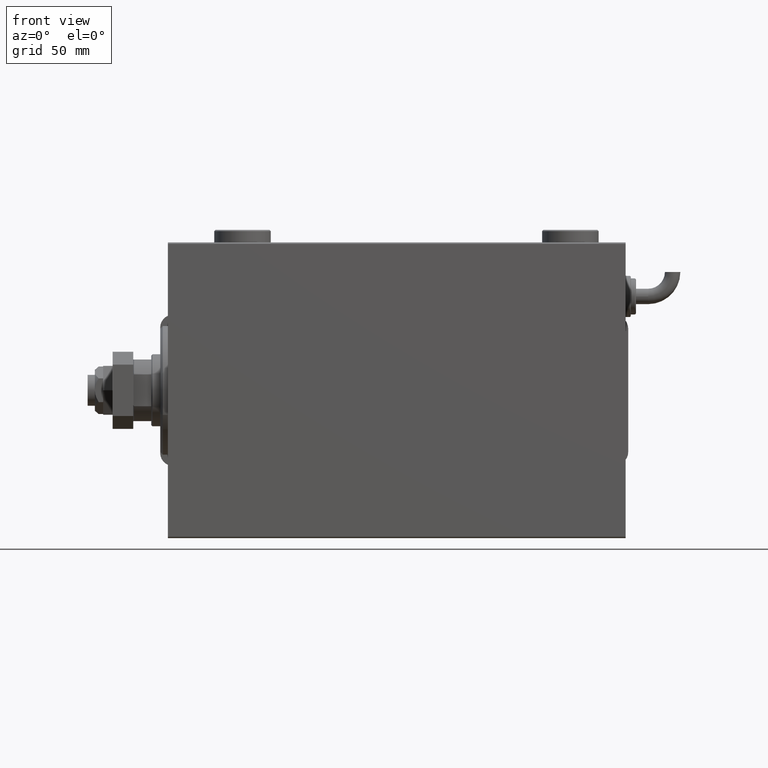
[diagram: clean part render]
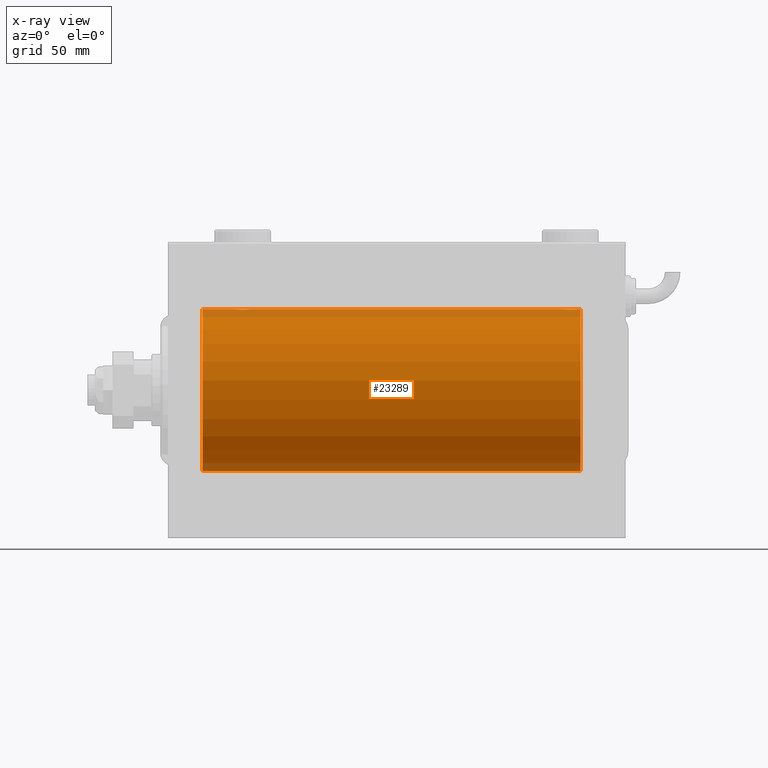
[diagram: x-ray — body ghosted, one internal face saturated and labeled with its STEP entity id]
A machine part, front view, then the same camera in x-ray: the body is ghosted and one INTERNAL B-rep face — a face not visible from any outside direction — is saturated and labeled: STEP entity #23289.
In plain terms, the highlighted cylindrical surface (partial cylindrical patch) has radius 31.5 mm, axis along (-1, -0, -0).
Its self-contained STEP definition (entity closure, byte-faithful):
#307 = CARTESIAN_POINT ( 'NONE',  ( 155.5305554434147837, -2.845838211243326032, 31.37127560316188024 ) ) ;
#395 = CARTESIAN_POINT ( 'NONE',  ( 31.38246872266631371, -1.833765390051040223, 31.44700610425690712 ) ) ;
#702 = LINE ( 'NONE', #59827, #1546 ) ;
#799 = CARTESIAN_POINT ( 'NONE',  ( 158.3304369148700346, -2.384935707362425550, -31.40977595730572247 ) ) ;
#1546 = VECTOR ( 'NONE', #56652, 1000.000000000000000 ) ;
#1906 = CARTESIAN_POINT ( 'NONE',  ( 32.00000000000000000, -3.906065418435112189E-16, 31.50000000000000000 ) ) ;
#2026 = CARTESIAN_POINT ( 'NONE',  ( 159.5000000000000000, 3.857637396132714903E-15, -31.50000000000000000 ) ) ;
#2657 = CARTESIAN_POINT ( 'NONE',  ( 30.98460359924664687, -2.258226318633781649, -31.41925597582825702 ) ) ;
#4121 = CARTESIAN_POINT ( 'NONE',  ( 26.00000000000001066, -0.1958045626907463088, 31.50000000000000711 ) ) ;
#4251 = EDGE_CURVE ( 'NONE', #57856, #50185, #39452, .T. ) ;
#4341 = CARTESIAN_POINT ( 'NONE',  ( 159.4202066295003988, -0.7905881588836107809, 31.49214662150069088 ) ) ;
#4427 = CARTESIAN_POINT ( 'NONE',  ( 29.96515729810641204, -2.847307171789037028, 31.37114183851420890 ) ) ;
#4491 = CARTESIAN_POINT ( 'NONE',  ( 27.67134585312494011, -2.696917666262907520, -31.38442820068732786 ) ) ;
#4651 = CARTESIAN_POINT ( 'NONE',  ( 156.6958229443944219, -3.000152387858483927, 31.35680286115499626 ) ) ;
#5036 = CARTESIAN_POINT ( 'NONE',  ( 27.66760041900836953, -2.695056442718533507, 31.38458855656185875 ) ) ;
#5250 = CARTESIAN_POINT ( 'NONE',  ( 154.5153964007533887, -2.258226318633788754, 31.41925597582826413 ) ) ;
#5450 = CARTESIAN_POINT ( 'NONE',  ( 158.8850144227692454, -1.830470878313878336, -31.44719957596828763 ) ) ;
#5546 = LINE ( 'NONE', #14500, #58778 ) ;
#6973 = CARTESIAN_POINT ( 'NONE',  ( 157.8323995809916767, -2.695056442718533951, -31.38458855656186230 ) ) ;
#7182 = VERTEX_POINT ( 'NONE', #39407 ) ;
#7579 = CARTESIAN_POINT ( 'NONE',  ( 154.5185653712696023, -2.261012035264789777, -31.41905495618427224 ) ) ;
#7594 = CARTESIAN_POINT ( 'NONE',  ( 31.98101509391517538, -0.3904857149111993775, -31.49817436802766224 ) ) ;
#8091 = EDGE_CURVE ( 'NONE', #46376, #32395, #14140, .T. ) ;
#9432 = CARTESIAN_POINT ( 'NONE',  ( 26.00000000000000355, -6.595038141055444136E-15, -31.50000000000000000 ) ) ;
#9587 = CARTESIAN_POINT ( 'NONE',  ( 157.2746909443437175, -2.904836261170101519, 31.36579955910872286 ) ) ;
#9675 = CARTESIAN_POINT ( 'NONE',  ( 29.19582294439440417, -3.000152387858486147, 31.35680286115499626 ) ) ;
#9884 = CARTESIAN_POINT ( 'NONE',  ( 159.1019214043915326, -1.506272792558311702, 31.46439306106696421 ) ) ;
#10078 = CARTESIAN_POINT ( 'NONE',  ( 159.3466046374250027, -0.9669616078781947399, -31.48567319468627446 ) ) ;
#11009 = DIRECTION ( 'NONE',  ( 0.000000000000000000, 0.000000000000000000, 1.000000000000000000 ) ) ;
#11525 = DIRECTION ( 'NONE',  ( -1.000000000000000000, -0.000000000000000000, -0.000000000000000000 ) ) ;
#11602 = CARTESIAN_POINT ( 'NONE',  ( 156.8953411100009703, -2.980257240990060730, -31.35872356503797320 ) ) ;
#11919 = CARTESIAN_POINT ( 'NONE',  ( 31.90419450738055218, -0.7775502215293819130, -31.49099686045559565 ) ) ;
#11923 = ORIENTED_EDGE ( 'NONE', *, *, #21234, .F. ) ;
#12091 = EDGE_CURVE ( 'NONE', #50185, #7182, #36603, .T. ) ;
#12511 = CARTESIAN_POINT ( 'NONE',  ( 153.5000000000000000, -2.045720367747829303E-14, -31.50000000000000000 ) ) ;
#12820 = CARTESIAN_POINT ( 'NONE',  ( 153.8980785956084105, -1.506272792558325468, -31.46439306106695710 ) ) ;
#13445 = CARTESIAN_POINT ( 'NONE',  ( 27.17295774629732819, -2.387531469909775605, -31.40957782495775419 ) ) ;
#13581 = AXIS2_PLACEMENT_3D ( 'NONE', #34459, #53337, #11009 ) ;
#13616 = CARTESIAN_POINT ( 'NONE',  ( 160.5000000000000000, 3.857637417314162689E-15, -31.50000000000000000 ) ) ;
#13900 = CARTESIAN_POINT ( 'NONE',  ( 158.8824687226662888, -1.833765390051030009, 31.44700610425690712 ) ) ;
#13993 = CARTESIAN_POINT ( 'NONE',  ( 30.82704225370267892, -2.387531469909770276, 31.40957782495776129 ) ) ;
#14140 = CIRCLE ( 'NONE', #33821, 31.50000000000000000 ) ;
#14205 = CARTESIAN_POINT ( 'NONE',  ( 153.8028576116330157, -1.328004386210311472, 31.47251238182141719 ) ) ;
#14313 = FACE_OUTER_BOUND ( 'NONE', #40734, .T. ) ;
#14351 = CARTESIAN_POINT ( 'NONE',  ( 26.61753127733371116, -1.833765390051047106, -31.44700610425690002 ) ) ;
#14383 = EDGE_CURVE ( 'NONE', #56769, #46781, #37180, .T. ) ;
#14500 = CARTESIAN_POINT ( 'NONE',  ( 160.5000000000000000, 3.857637417314162689E-15, -31.50000000000000000 ) ) ;
#14765 = ORIENTED_EDGE ( 'NONE', *, *, #37258, .F. ) ;
#15101 = CARTESIAN_POINT ( 'NONE',  ( 158.3270422537027002, -2.387531469909772941, 31.40957782495776840 ) ) ;
#15206 = DIRECTION ( 'NONE',  ( 0.000000000000000000, 0.000000000000000000, 1.000000000000000000 ) ) ;
#15265 = CARTESIAN_POINT ( 'NONE',  ( 160.5000000000000000, 3.857637417314162689E-15, -31.50000000000000000 ) ) ;
#15301 = CARTESIAN_POINT ( 'NONE',  ( 158.4846035992465829, -2.258226318633799412, -31.41925597582826413 ) ) ;
#16538 = CARTESIAN_POINT ( 'NONE',  ( 32.00000000000000000, 3.857637396137448068E-15, -31.50000000000000000 ) ) ;
#16822 = CARTESIAN_POINT ( 'NONE',  ( 153.5797933704995728, -0.7905881588836281004, -31.49214662150069088 ) ) ;
#16835 = CARTESIAN_POINT ( 'NONE',  ( 29.96944455658523054, -2.845838211243329585, -31.37127560316186603 ) ) ;
#17139 = CARTESIAN_POINT ( 'NONE',  ( 31.60417781274729165, -1.502389880412996259, -31.46458023642406587 ) ) ;
#17446 = CARTESIAN_POINT ( 'NONE',  ( 28.22530905565627179, -2.904836261170103739, -31.36579955910872286 ) ) ;
#18003 = CARTESIAN_POINT ( 'NONE',  ( 153.5000000000000000, -2.118130973563677748E-23, 31.50000000000000000 ) ) ;
#18150 = CARTESIAN_POINT ( 'NONE',  ( 26.00000000000000355, -6.595038141055444136E-15, -31.50000000000000000 ) ) ;
#18531 = CARTESIAN_POINT ( 'NONE',  ( 156.8911454733994333, -2.980809450819698281, 31.35867074198615967 ) ) ;
#18617 = CARTESIAN_POINT ( 'NONE',  ( 26.01898490608483527, -0.3904857149112033743, 31.49817436802766935 ) ) ;
#18673 = CARTESIAN_POINT ( 'NONE',  ( 27.49901843703856130, -2.604888532024793424, -31.39229907792058683 ) ) ;
#18798 = EDGE_CURVE ( 'NONE', #7182, #59370, #20431, .T. ) ;
#18873 = CARTESIAN_POINT ( 'NONE',  ( 13.50000000000001243, 0.000000000000000000, 31.50000000000000000 ) ) ;
#18916 = CARTESIAN_POINT ( 'NONE',  ( 26.39582218725271900, -1.502389880413001144, 31.46458023642405166 ) ) ;
#19130 = CARTESIAN_POINT ( 'NONE',  ( 156.1046588899990581, -2.980257240990053624, 31.35872356503797320 ) ) ;
#20312 = B_SPLINE_CURVE_WITH_KNOTS ( 'NONE', 3,
 ( #2026, #29791, #48665, #52407, #10078, #28890, #47756, #5450, #24251, #15301, #799, #26675, #6973, #40911, #55149, #11602, #40604, #59785, #31021, #39696, #26380, #49905, #54534, #45855, #7579, #49597, #30408, #12820, #59178, #16822, #35656, #12511 ),
 .UNSPECIFIED., .F., .F.,
 ( 4, 2, 2, 2, 2, 2, 2, 2, 2, 2, 2, 2, 2, 2, 2, 4 ),
 ( 0.009384682587134632673, 0.009971088165454031899, 0.01055749374377343112, 0.01114389932209283035, 0.01173030490041223131, 0.01231671047873163054, 0.01290311605705102976, 0.01348952163537043072, 0.01407592721368982822, 0.01466233279200922918, 0.01524873837032862840, 0.01583514394864802763, 0.01642154952696742512, 0.01700795510528682608, 0.01759436068360622357, 0.01876717184024502549 ),
 .UNSPECIFIED. ) ;
#20431 = CIRCLE ( 'NONE', #13581, 31.50000000000000000 ) ;
#20791 = CARTESIAN_POINT ( 'NONE',  ( 153.5000000000000000, -2.045720367747829303E-14, -31.50000000000000000 ) ) ;
#21234 = EDGE_CURVE ( 'NONE', #56769, #33739, #30642, .T. ) ;
#21389 = AXIS2_PLACEMENT_3D ( 'NONE', #57560, #24161, #15206 ) ;
#22058 = CARTESIAN_POINT ( 'NONE',  ( 29.20046458974095671, -2.999845816735294157, -31.35683219171744085 ) ) ;
#22681 = CARTESIAN_POINT ( 'NONE',  ( 28.03484270189360217, -2.847307171789034808, -31.37114183851420179 ) ) ;
#22928 = CARTESIAN_POINT ( 'NONE',  ( 28.60465888999904749, -2.980257240990054513, 31.35872356503797320 ) ) ;
#22986 = CARTESIAN_POINT ( 'NONE',  ( 26.39807859560848158, -1.506272792558332130, -31.46439306106697131 ) ) ;
#23235 = CARTESIAN_POINT ( 'NONE',  ( 30.32865414687508832, -2.696917666262907520, 31.38442820068731365 ) ) ;
#23289 = ADVANCED_FACE ( 'NONE', ( #14313 ), #42727, .F. ) ;
#23752 = CARTESIAN_POINT ( 'NONE',  ( 153.5189849060848246, -0.3904857149112037629, 31.49817436802766935 ) ) ;
#23840 = CARTESIAN_POINT ( 'NONE',  ( 29.77469094434372821, -2.904836261170106404, 31.36579955910873707 ) ) ;
#23974 = VECTOR ( 'NONE', #60416, 1000.000000000000000 ) ;
#24161 = DIRECTION ( 'NONE',  ( -1.000000000000000000, -0.000000000000000000, -0.000000000000000000 ) ) ;
#24251 = CARTESIAN_POINT ( 'NONE',  ( 158.7609546245613217, -1.981494824113344322, -31.43792153503157394 ) ) ;
#24345 = DIRECTION ( 'NONE',  ( -1.000000000000000000, -0.000000000000000000, -0.000000000000000000 ) ) ;
#24353 = CARTESIAN_POINT ( 'NONE',  ( 159.5000000000000000, 4.699731104275013306E-15, 31.50000000000000000 ) ) ;
#25008 = CARTESIAN_POINT ( 'NONE',  ( 160.5000000000000000, 0.000000000000000000, 0.000000000000000000 ) ) ;
#25651 = ORIENTED_EDGE ( 'NONE', *, *, #29058, .T. ) ;
#26094 = CARTESIAN_POINT ( 'NONE',  ( 31.38501442276926667, -1.830470878313872563, -31.44719957596828763 ) ) ;
#26380 = CARTESIAN_POINT ( 'NONE',  ( 155.5348427018936377, -2.847307171789046354, -31.37114183851420179 ) ) ;
#26675 = CARTESIAN_POINT ( 'NONE',  ( 158.0045628500699877, -2.602826974226389645, -31.39247100434486271 ) ) ;
#27742 = VERTEX_POINT ( 'NONE', #30346 ) ;
#27786 = CARTESIAN_POINT ( 'NONE',  ( 157.4651572981064476, -2.847307171789025926, 31.37114183851420179 ) ) ;
#27933 = CARTESIAN_POINT ( 'NONE',  ( 27.01856537126958813, -2.261012035264781783, -31.41905495618428645 ) ) ;
#28177 = CARTESIAN_POINT ( 'NONE',  ( 26.15339536257501507, -0.9669616078781987367, 31.48567319468626735 ) ) ;
#28393 = CARTESIAN_POINT ( 'NONE',  ( 153.5000000000000000, -2.118130973563677748E-23, 31.50000000000000000 ) ) ;
#28692 = CARTESIAN_POINT ( 'NONE',  ( 159.1952964235900936, -1.331741824817656683, 31.47235367475393630 ) ) ;
#28890 = CARTESIAN_POINT ( 'NONE',  ( 159.1971423883670127, -1.328004386210302368, -31.47251238182141719 ) ) ;
#28988 = CARTESIAN_POINT ( 'NONE',  ( 153.5958054926194620, -0.7775502215293850217, 31.49099686045560276 ) ) ;
#29058 = EDGE_CURVE ( 'NONE', #45526, #57856, #42023, .T. ) ;
#29791 = CARTESIAN_POINT ( 'NONE',  ( 159.5000000000000284, -0.1958045626907440329, -31.50000000000000000 ) ) ;
#29978 = CARTESIAN_POINT ( 'NONE',  ( 32.00000000000001421, -0.3965830985361748495, 31.50000000000001421 ) ) ;
#30023 = CARTESIAN_POINT ( 'NONE',  ( 160.5000000000000000, 0.000000000000000000, 31.50000000000000000 ) ) ;
#30346 = CARTESIAN_POINT ( 'NONE',  ( 26.00000000000000355, -2.117263226567934635E-23, 31.50000000000000000 ) ) ;
#30408 = CARTESIAN_POINT ( 'NONE',  ( 154.1175312773337112, -1.833765390051043553, -31.44700610425689291 ) ) ;
#30539 = ORIENTED_EDGE ( 'NONE', *, *, #57510, .F. ) ;
#30642 = LINE ( 'NONE', #30023, #47969 ) ;
#31021 = CARTESIAN_POINT ( 'NONE',  ( 156.1088545266006236, -2.980809450819712936, -31.35867074198615967 ) ) ;
#31039 = ORIENTED_EDGE ( 'NONE', *, *, #53077, .T. ) ;
#31656 = VECTOR ( 'NONE', #51581, 1000.000000000000000 ) ;
#32395 = VERTEX_POINT ( 'NONE', #37540 ) ;
#32513 = CARTESIAN_POINT ( 'NONE',  ( 29.39114547339941552, -2.980809450819701834, 31.35867074198615967 ) ) ;
#32735 = CARTESIAN_POINT ( 'NONE',  ( 155.7211808735768273, -2.903733559410683895, 31.36590199989304395 ) ) ;
#33031 = CARTESIAN_POINT ( 'NONE',  ( 159.4999999999999432, -0.3965830985361761263, 31.50000000000000000 ) ) ;
#33123 = CARTESIAN_POINT ( 'NONE',  ( 27.16956308512997964, -2.384935707362437096, 31.40977595730572958 ) ) ;
#33341 = CARTESIAN_POINT ( 'NONE',  ( 154.9954371499300407, -2.602826974226394086, 31.39247100434485560 ) ) ;
#33424 = CARTESIAN_POINT ( 'NONE',  ( 26.73904537543869608, -1.981494824113328779, 31.43792153503155973 ) ) ;
#33739 = VERTEX_POINT ( 'NONE', #33785 ) ;
#33785 = CARTESIAN_POINT ( 'NONE',  ( 32.00000000000000000, -3.906065418435112189E-16, 31.50000000000000000 ) ) ;
#33821 = AXIS2_PLACEMENT_3D ( 'NONE', #25008, #54911, #43867 ) ;
#34459 = CARTESIAN_POINT ( 'NONE',  ( 13.50000000000001243, 0.000000000000000000, 0.000000000000000000 ) ) ;
#35656 = CARTESIAN_POINT ( 'NONE',  ( 153.5000000000000284, -0.3965830985361946115, -31.50000000000000711 ) ) ;
#35673 = CARTESIAN_POINT ( 'NONE',  ( 32.00000000000001421, -0.1958045626907418957, -31.50000000000000711 ) ) ;
#35943 = ORIENTED_EDGE ( 'NONE', *, *, #18798, .T. ) ;
#35981 = CARTESIAN_POINT ( 'NONE',  ( 29.77881912642320827, -2.903733559410679455, -31.36590199989303684 ) ) ;
#36603 = LINE ( 'NONE', #56397, #23974 ) ;
#37180 = B_SPLINE_CURVE_WITH_KNOTS ( 'NONE', 3,
 ( #28393, #52811, #23752, #28988, #42317, #14205, #51605, #56554, #56244, #5250, #42613, #33341, #46964, #307, #32735, #19130, #52214, #4651, #18531, #9587, #27786, #57156, #47568, #15101, #47862, #37372, #13900, #9884, #28692, #4341, #33031, #24353 ),
 .UNSPECIFIED., .F., .F.,
 ( 4, 2, 2, 2, 2, 2, 2, 2, 2, 2, 2, 2, 2, 2, 2, 4 ),
 ( 0.009384682587134643081, 0.009971088165454042307, 0.01055749374377344327, 0.01114389932209284423, 0.01173030490041224345, 0.01231671047873164268, 0.01290311605705104364, 0.01348952163537044460, 0.01407592721368984383, 0.01466233279200924305, 0.01524873837032864402, 0.01583514394864804498, 0.01642154952696744594, 0.01700795510528684690, 0.01759436068360624439, 0.01876717184024504284 ),
 .UNSPECIFIED. ) ;
#37258 = EDGE_CURVE ( 'NONE', #32395, #46781, #37349, .T. ) ;
#37277 = VECTOR ( 'NONE', #51918, 1000.000000000000000 ) ;
#37349 = LINE ( 'NONE', #46325, #31656 ) ;
#37372 = CARTESIAN_POINT ( 'NONE',  ( 158.7582450190326426, -1.984587626072069844, 31.43772577203671759 ) ) ;
#37540 = CARTESIAN_POINT ( 'NONE',  ( 160.5000000000000000, 0.000000000000000000, 31.50000000000000000 ) ) ;
#37696 = CARTESIAN_POINT ( 'NONE',  ( 159.5000000000000000, 3.857637396132714903E-15, -31.50000000000000000 ) ) ;
#37760 = CARTESIAN_POINT ( 'NONE',  ( 26.00000000000000355, -2.117263226567934635E-23, 31.50000000000000000 ) ) ;
#39407 = CARTESIAN_POINT ( 'NONE',  ( 13.50000000000001243, 3.857637417314162689E-15, -31.50000000000000000 ) ) ;
#39452 = B_SPLINE_CURVE_WITH_KNOTS ( 'NONE', 3,
 ( #16538, #35673, #7594, #11919, #40623, #49609, #17139, #26094, #44966, #2657, #40320, #45567, #59191, #16835, #35981, #54857, #22058, #40926, #59797, #17446, #22681, #4491, #18673, #13445, #27933, #47110, #14351, #22986, #41848, #42460, #60412, #9432 ),
 .UNSPECIFIED., .F., .F.,
 ( 4, 2, 2, 2, 2, 2, 2, 2, 2, 2, 2, 2, 2, 2, 2, 4 ),
 ( 0.009384682587134662163, 0.009971088165454068328, 0.01055749374377347449, 0.01114389932209288066, 0.01173030490041228682, 0.01231671047873168605, 0.01290311605705108527, 0.01348952163537048277, 0.01407592721368988199, 0.01466233279200928122, 0.01524873837032868044, 0.01583514394864807967, 0.01642154952696747716, 0.01700795510528687812, 0.01759436068360627908, 0.01876717184024507407 ),
 .UNSPECIFIED. ) ;
#39696 = CARTESIAN_POINT ( 'NONE',  ( 155.7253090556563109, -2.904836261170120171, -31.36579955910872286 ) ) ;
#40207 = VERTEX_POINT ( 'NONE', #37696 ) ;
#40320 = CARTESIAN_POINT ( 'NONE',  ( 30.83043691487002746, -2.384935707362433988, -31.40977595730572958 ) ) ;
#40604 = CARTESIAN_POINT ( 'NONE',  ( 156.7004645897409887, -2.999845816735304815, -31.35683219171744796 ) ) ;
#40623 = CARTESIAN_POINT ( 'NONE',  ( 31.84660463742499559, -0.9669616078781945179, -31.48567319468626735 ) ) ;
#40734 = EDGE_LOOP ( 'NONE', ( #54046, #31039, #45771, #25651, #61024, #43679, #35943, #30539, #50929, #11923, #41325, #14765 ) ) ;
#40911 = CARTESIAN_POINT ( 'NONE',  ( 157.4694445565852448, -2.845838211243336691, -31.37127560316186603 ) ) ;
#40926 = CARTESIAN_POINT ( 'NONE',  ( 28.80417705560560648, -3.000152387858484371, -31.35680286115500337 ) ) ;
#41325 = ORIENTED_EDGE ( 'NONE', *, *, #14383, .T. ) ;
#41790 = CARTESIAN_POINT ( 'NONE',  ( 30.98143462873041898, -2.261012035264782227, 31.41905495618429356 ) ) ;
#41848 = CARTESIAN_POINT ( 'NONE',  ( 26.30470357640989576, -1.331741824817665343, -31.47235367475392920 ) ) ;
#42023 = LINE ( 'NONE', #13616, #37277 ) ;
#42099 = CARTESIAN_POINT ( 'NONE',  ( 28.22118087357680238, -2.903733559410683895, 31.36590199989303684 ) ) ;
#42317 = CARTESIAN_POINT ( 'NONE',  ( 153.6533953625750257, -0.9669616078782046209, 31.48567319468627801 ) ) ;
#42460 = CARTESIAN_POINT ( 'NONE',  ( 26.07979337049960478, -0.7905881588836203289, -31.49214662150069088 ) ) ;
#42613 = CARTESIAN_POINT ( 'NONE',  ( 154.6695630851299654, -2.384935707362434876, 31.40977595730572958 ) ) ;
#42702 = CARTESIAN_POINT ( 'NONE',  ( 30.50098156296146712, -2.604888532024788983, 31.39229907792058683 ) ) ;
#42727 = CYLINDRICAL_SURFACE ( 'NONE', #21389, 31.50000000000000000 ) ;
#43679 = ORIENTED_EDGE ( 'NONE', *, *, #12091, .T. ) ;
#43867 = DIRECTION ( 'NONE',  ( 0.000000000000000000, 0.000000000000000000, 1.000000000000000000 ) ) ;
#44966 = CARTESIAN_POINT ( 'NONE',  ( 31.26095462456130747, -1.981494824113326114, -31.43792153503156683 ) ) ;
#45526 = VERTEX_POINT ( 'NONE', #20791 ) ;
#45567 = CARTESIAN_POINT ( 'NONE',  ( 30.50456285006998769, -2.602826974226392309, -31.39247100434485560 ) ) ;
#45771 = ORIENTED_EDGE ( 'NONE', *, *, #48371, .T. ) ;
#45855 = CARTESIAN_POINT ( 'NONE',  ( 154.6729577462973566, -2.387531469909784931, -31.40957782495775419 ) ) ;
#46325 = CARTESIAN_POINT ( 'NONE',  ( 160.5000000000000000, 0.000000000000000000, 31.50000000000000000 ) ) ;
#46376 = VERTEX_POINT ( 'NONE', #15265 ) ;
#46743 = CARTESIAN_POINT ( 'NONE',  ( 27.01539640075335669, -2.258226318633785201, 31.41925597582825702 ) ) ;
#46781 = VERTEX_POINT ( 'NONE', #58151 ) ;
#46964 = CARTESIAN_POINT ( 'NONE',  ( 155.1676004190083233, -2.695056442718522849, 31.38458855656185165 ) ) ;
#47049 = CARTESIAN_POINT ( 'NONE',  ( 26.30285761163300151, -1.328004386210305698, 31.47251238182140298 ) ) ;
#47110 = CARTESIAN_POINT ( 'NONE',  ( 26.74175498096735026, -1.984587626072075617, -31.43772577203673180 ) ) ;
#47568 = CARTESIAN_POINT ( 'NONE',  ( 158.0009815629614991, -2.604888532024791203, 31.39229907792058683 ) ) ;
#47756 = CARTESIAN_POINT ( 'NONE',  ( 159.1041778127473378, -1.502389880412999146, -31.46458023642405877 ) ) ;
#47862 = CARTESIAN_POINT ( 'NONE',  ( 158.4814346287303977, -2.261012035264779119, 31.41905495618428645 ) ) ;
#47969 = VECTOR ( 'NONE', #11525, 1000.000000000000000 ) ;
#48371 = EDGE_CURVE ( 'NONE', #40207, #45526, #20312, .T. ) ;
#48542 = CARTESIAN_POINT ( 'NONE',  ( 31.60192140439154684, -1.506272792558323470, 31.46439306106697131 ) ) ;
#48665 = CARTESIAN_POINT ( 'NONE',  ( 159.4810150939152038, -0.3904857149112007653, -31.49817436802767290 ) ) ;
#49166 = CARTESIAN_POINT ( 'NONE',  ( 31.69529642359010424, -1.331741824817659348, 31.47235367475393630 ) ) ;
#49597 = CARTESIAN_POINT ( 'NONE',  ( 154.2417549809673289, -1.984587626072083388, -31.43772577203671048 ) ) ;
#49609 = CARTESIAN_POINT ( 'NONE',  ( 31.69714238836700915, -1.328004386210301480, -31.47251238182141009 ) ) ;
#49905 = CARTESIAN_POINT ( 'NONE',  ( 155.1713458531249330, -2.696917666262917290, -31.38442820068731365 ) ) ;
#50185 = VERTEX_POINT ( 'NONE', #18150 ) ;
#50929 = ORIENTED_EDGE ( 'NONE', *, *, #56892, .T. ) ;
#51387 = CARTESIAN_POINT ( 'NONE',  ( 26.61498557723073333, -1.830470878313877892, 31.44719957596828053 ) ) ;
#51581 = DIRECTION ( 'NONE',  ( -1.000000000000000000, -0.000000000000000000, -0.000000000000000000 ) ) ;
#51605 = CARTESIAN_POINT ( 'NONE',  ( 153.8958221872527190, -1.502389880412993595, 31.46458023642405877 ) ) ;
#51918 = DIRECTION ( 'NONE',  ( -1.000000000000000000, -0.000000000000000000, -0.000000000000000000 ) ) ;
#51995 = CARTESIAN_POINT ( 'NONE',  ( 28.79953541025904684, -2.999845816735297266, 31.35683219171744796 ) ) ;
#52214 = CARTESIAN_POINT ( 'NONE',  ( 156.2995354102590682, -2.999845816735293713, 31.35683219171744796 ) ) ;
#52407 = CARTESIAN_POINT ( 'NONE',  ( 159.4041945073806232, -0.7775502215293820241, -31.49099686045560276 ) ) ;
#52811 = CARTESIAN_POINT ( 'NONE',  ( 153.5000000000000284, -0.1958045626907475856, 31.50000000000000000 ) ) ;
#53077 = EDGE_CURVE ( 'NONE', #46376, #40207, #5546, .T. ) ;
#53337 = DIRECTION ( 'NONE',  ( -1.000000000000000000, 0.000000000000000000, 0.000000000000000000 ) ) ;
#54046 = ORIENTED_EDGE ( 'NONE', *, *, #8091, .F. ) ;
#54534 = CARTESIAN_POINT ( 'NONE',  ( 154.9990184370385293, -2.604888532024801417, -31.39229907792057972 ) ) ;
#54857 = CARTESIAN_POINT ( 'NONE',  ( 29.39534111000094541, -2.980257240990050960, -31.35872356503797320 ) ) ;
#54911 = DIRECTION ( 'NONE',  ( -1.000000000000000000, 0.000000000000000000, 0.000000000000000000 ) ) ;
#55149 = CARTESIAN_POINT ( 'NONE',  ( 157.2788191264232580, -2.903733559410687004, -31.36590199989303684 ) ) ;
#56244 = CARTESIAN_POINT ( 'NONE',  ( 154.2390453754387067, -1.981494824113333442, 31.43792153503156683 ) ) ;
#56334 = CARTESIAN_POINT ( 'NONE',  ( 26.09580549261944427, -0.7775502215293862429, 31.49099686045558144 ) ) ;
#56397 = CARTESIAN_POINT ( 'NONE',  ( 160.5000000000000000, 3.857637417314162689E-15, -31.50000000000000000 ) ) ;
#56554 = CARTESIAN_POINT ( 'NONE',  ( 154.1149855772306978, -1.830470878313871008, 31.44719957596828763 ) ) ;
#56640 = CARTESIAN_POINT ( 'NONE',  ( 27.49543714993000876, -2.602826974226395862, 31.39247100434485560 ) ) ;
#56652 = DIRECTION ( 'NONE',  ( -1.000000000000000000, -0.000000000000000000, -0.000000000000000000 ) ) ;
#56769 = VERTEX_POINT ( 'NONE', #18003 ) ;
#56892 = EDGE_CURVE ( 'NONE', #27742, #33739, #59447, .T. ) ;
#57156 = CARTESIAN_POINT ( 'NONE',  ( 157.8286541468751238, -2.696917666262893309, 31.38442820068731365 ) ) ;
#57510 = EDGE_CURVE ( 'NONE', #27742, #59370, #702, .T. ) ;
#57560 = CARTESIAN_POINT ( 'NONE',  ( 160.5000000000000000, 0.000000000000000000, 0.000000000000000000 ) ) ;
#57856 = VERTEX_POINT ( 'NONE', #60990 ) ;
#58142 = CARTESIAN_POINT ( 'NONE',  ( 31.92020662950040943, -0.7905881588836116691, 31.49214662150068378 ) ) ;
#58151 = CARTESIAN_POINT ( 'NONE',  ( 159.5000000000000000, 4.699731104275013306E-15, 31.50000000000000000 ) ) ;
#58778 = VECTOR ( 'NONE', #24345, 1000.000000000000000 ) ;
#59178 = CARTESIAN_POINT ( 'NONE',  ( 153.8047035764099633, -1.331741824817675335, -31.47235367475394341 ) ) ;
#59191 = CARTESIAN_POINT ( 'NONE',  ( 30.33239958099164824, -2.695056442718529954, -31.38458855656185875 ) ) ;
#59370 = VERTEX_POINT ( 'NONE', #18873 ) ;
#59447 = B_SPLINE_CURVE_WITH_KNOTS ( 'NONE', 3,
 ( #37760, #4121, #18617, #56334, #28177, #47049, #18916, #51387, #33424, #46743, #33123, #56640, #5036, #60657, #42099, #22928, #51995, #9675, #32513, #23840, #4427, #23235, #42702, #13993, #41790, #60966, #395, #48542, #49166, #58142, #29978, #1906 ),
 .UNSPECIFIED., .F., .F.,
 ( 4, 2, 2, 2, 2, 2, 2, 2, 2, 2, 2, 2, 2, 2, 2, 4 ),
 ( 0.009384682587134639611, 0.009971088165454038837, 0.01055749374377343980, 0.01114389932209284076, 0.01173030490041223999, 0.01231671047873163921, 0.01290311605705104017, 0.01348952163537044113, 0.01407592721368984036, 0.01466233279200923958, 0.01524873837032864055, 0.01583514394864804151, 0.01642154952696744247, 0.01700795510528683996, 0.01759436068360624092, 0.01876717184024503243 ),
 .UNSPECIFIED. ) ;
#59785 = CARTESIAN_POINT ( 'NONE',  ( 156.3041770556056065, -3.000152387858495029, -31.35680286115499626 ) ) ;
#59797 = CARTESIAN_POINT ( 'NONE',  ( 28.60885452660059869, -2.980809450819698725, -31.35867074198615256 ) ) ;
#59827 = CARTESIAN_POINT ( 'NONE',  ( 160.5000000000000000, 0.000000000000000000, 31.50000000000000000 ) ) ;
#60412 = CARTESIAN_POINT ( 'NONE',  ( 26.00000000000000355, -0.3965830985361813443, -31.50000000000000711 ) ) ;
#60416 = DIRECTION ( 'NONE',  ( -1.000000000000000000, -0.000000000000000000, -0.000000000000000000 ) ) ;
#60657 = CARTESIAN_POINT ( 'NONE',  ( 28.03055544341478722, -2.845838211243333138, 31.37127560316186603 ) ) ;
#60966 = CARTESIAN_POINT ( 'NONE',  ( 31.25824501903266039, -1.984587626072074285, 31.43772577203672469 ) ) ;
#60990 = CARTESIAN_POINT ( 'NONE',  ( 32.00000000000000000, 3.857637396137448068E-15, -31.50000000000000000 ) ) ;
#61024 = ORIENTED_EDGE ( 'NONE', *, *, #4251, .T. ) ;